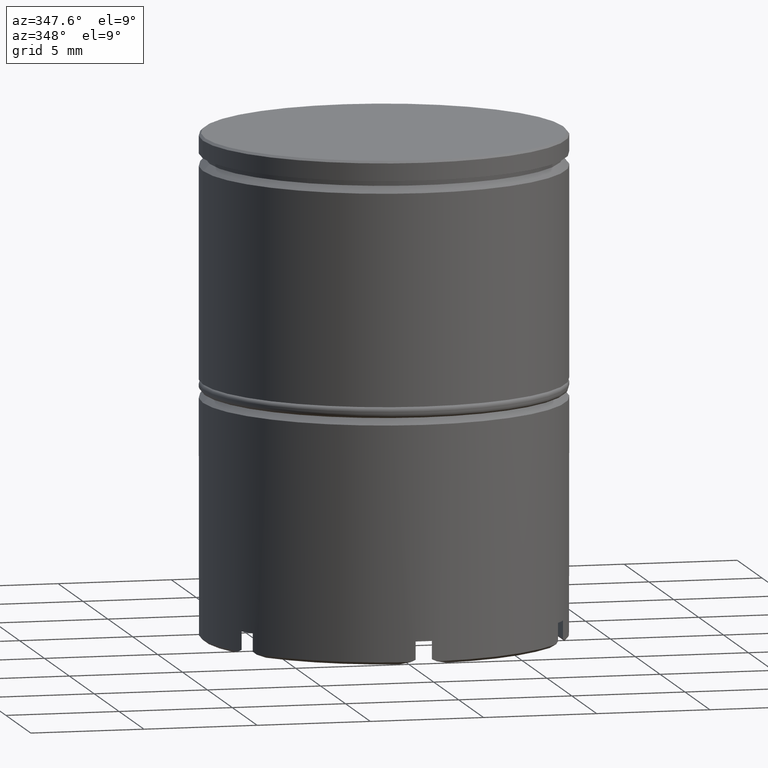
[diagram: clean part render]
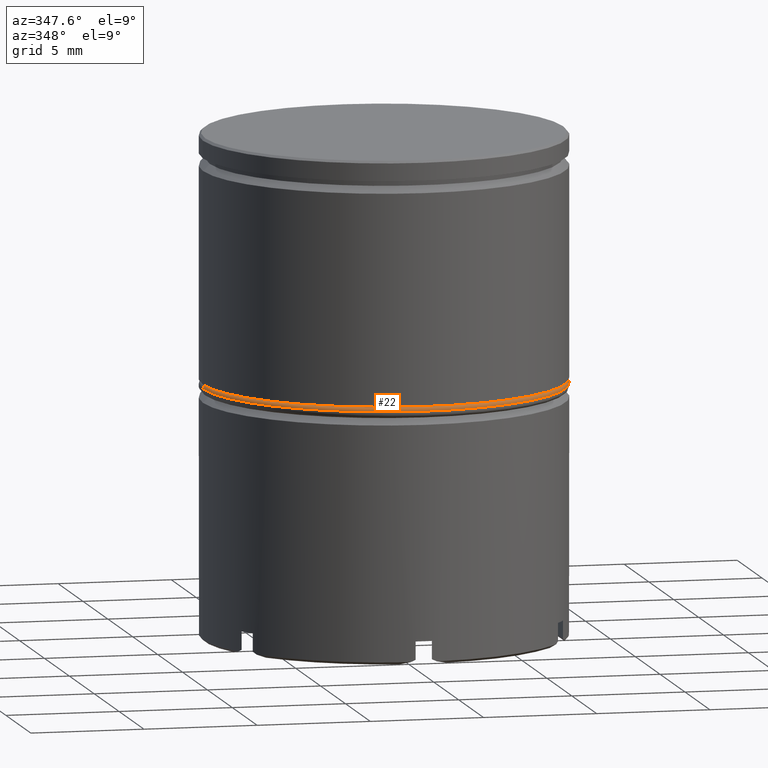
[diagram: same view with one face highlighted and labeled with its STEP entity id]
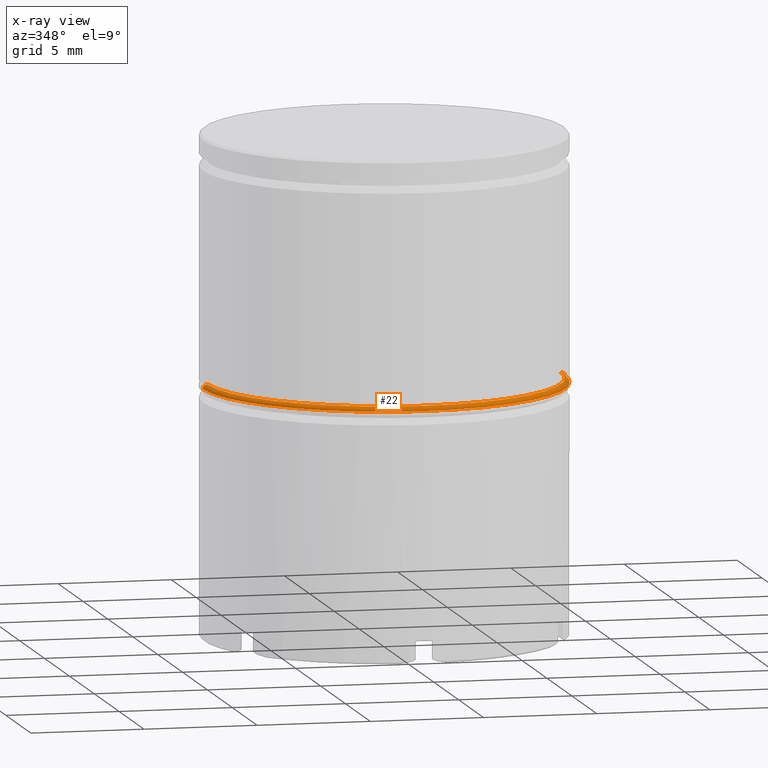
[diagram: x-ray of the same camera — body ghosted, the highlighted face saturated]
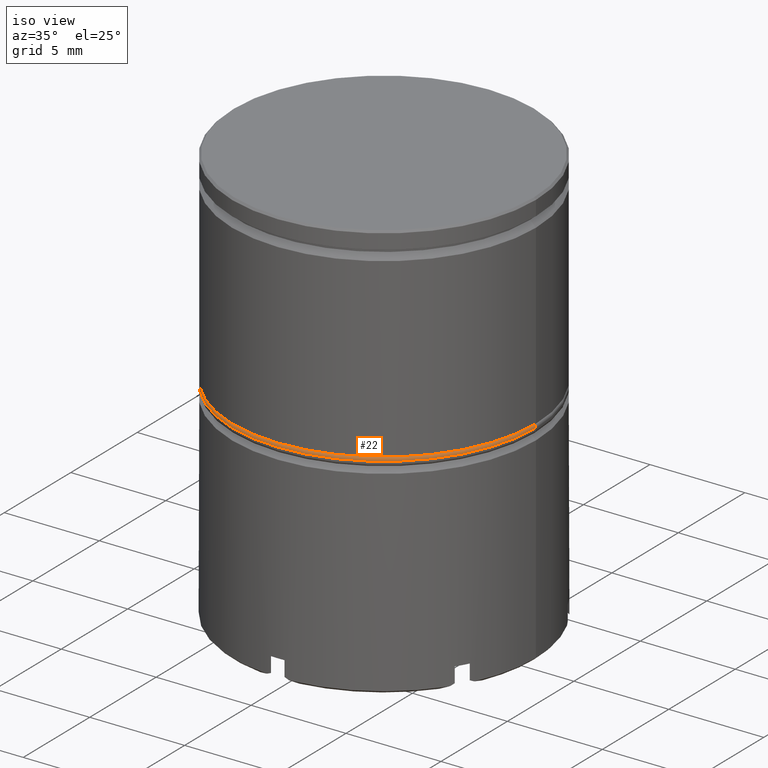
[diagram: same view with one face highlighted and labeled with its STEP entity id]
A machine part, auxiliary view. The second image highlights one B-rep face of the part: STEP entity #22.
The next image is the same camera in x-ray: the body ghosted, the highlighted face saturated — about 0% of this face is hidden behind the body in this view.
A second angle (iso view) of the same face is appended — the face is thin or edge-on in the first view.
In plain terms, the highlighted toroidal blend (fillet) surface has major radius 7.8 mm and minor (blend) radius 0.2 mm.
Its self-contained STEP definition (entity closure, byte-faithful):
#22 = ADVANCED_FACE ( 'NONE', ( #235 ), #1215, .T. ) ;
#50 = AXIS2_PLACEMENT_3D ( 'NONE', #439, #947, #684 ) ;
#61 = CARTESIAN_POINT ( 'NONE',  ( 8.000000000000000000, 0.000000000000000000, -10.95000000000000107 ) ) ;
#128 = AXIS2_PLACEMENT_3D ( 'NONE', #838, #762, #1465 ) ;
#135 = CIRCLE ( 'NONE', #720, 0.1999999999999996503 ) ;
#165 = CARTESIAN_POINT ( 'NONE',  ( 7.800000000000000711, 9.674709713264090115E-16, -10.75000000000000000 ) ) ;
#223 = EDGE_CURVE ( 'NONE', #904, #963, #1289, .T. ) ;
#235 = FACE_OUTER_BOUND ( 'NONE', #475, .T. ) ;
#335 = CARTESIAN_POINT ( 'NONE',  ( -7.800000000000000711, 0.000000000000000000, -10.75000000000000000 ) ) ;
#411 = CARTESIAN_POINT ( 'NONE',  ( -7.800000000000000711, 0.000000000000000000, -10.95000000000000107 ) ) ;
#439 = CARTESIAN_POINT ( 'NONE',  ( 0.000000000000000000, 0.000000000000000000, -10.95000000000000107 ) ) ;
#475 = EDGE_LOOP ( 'NONE', ( #1409, #1436, #675, #1350 ) ) ;
#479 = VERTEX_POINT ( 'NONE', #61 ) ;
#488 = CARTESIAN_POINT ( 'NONE',  ( -8.000000000000000000, 9.797174393178823685E-16, -10.95000000000000107 ) ) ;
#496 = CARTESIAN_POINT ( 'NONE',  ( 7.800000000000000711, 9.552245033349356544E-16, -10.95000000000000107 ) ) ;
#514 = CARTESIAN_POINT ( 'NONE',  ( 0.000000000000000000, 0.000000000000000000, -10.95000000000000107 ) ) ;
#521 = AXIS2_PLACEMENT_3D ( 'NONE', #411, #823, #1051 ) ;
#576 = EDGE_CURVE ( 'NONE', #479, #963, #792, .T. ) ;
#649 = EDGE_CURVE ( 'NONE', #904, #707, #1551, .T. ) ;
#675 = ORIENTED_EDGE ( 'NONE', *, *, #223, .T. ) ;
#684 = DIRECTION ( 'NONE',  ( -1.000000000000000000, 0.000000000000000000, 0.000000000000000000 ) ) ;
#707 = VERTEX_POINT ( 'NONE', #165 ) ;
#720 = AXIS2_PLACEMENT_3D ( 'NONE', #496, #1595, #1352 ) ;
#762 = DIRECTION ( 'NONE',  ( -0.000000000000000000, -0.000000000000000000, 1.000000000000000000 ) ) ;
#792 = CIRCLE ( 'NONE', #50, 8.000000000000000000 ) ;
#823 = DIRECTION ( 'NONE',  ( -0.000000000000000000, -1.000000000000000000, -0.000000000000000000 ) ) ;
#838 = CARTESIAN_POINT ( 'NONE',  ( 0.000000000000000000, 0.000000000000000000, -10.75000000000000000 ) ) ;
#904 = VERTEX_POINT ( 'NONE', #335 ) ;
#947 = DIRECTION ( 'NONE',  ( 0.000000000000000000, 0.000000000000000000, -1.000000000000000000 ) ) ;
#963 = VERTEX_POINT ( 'NONE', #488 ) ;
#1051 = DIRECTION ( 'NONE',  ( 0.000000000000000000, 0.000000000000000000, -1.000000000000000000 ) ) ;
#1211 = EDGE_CURVE ( 'NONE', #707, #479, #135, .T. ) ;
#1215 = TOROIDAL_SURFACE ( 'NONE', #1549, 7.800000000000000711, 0.2000000000000000111 ) ;
#1281 = DIRECTION ( 'NONE',  ( -1.000000000000000000, 0.000000000000000000, 0.000000000000000000 ) ) ;
#1289 = CIRCLE ( 'NONE', #521, 0.2000000000000005107 ) ;
#1350 = ORIENTED_EDGE ( 'NONE', *, *, #576, .F. ) ;
#1352 = DIRECTION ( 'NONE',  ( -1.000000000000000000, -1.224646799147358384E-16, 0.000000000000000000 ) ) ;
#1409 = ORIENTED_EDGE ( 'NONE', *, *, #1211, .F. ) ;
#1436 = ORIENTED_EDGE ( 'NONE', *, *, #649, .F. ) ;
#1465 = DIRECTION ( 'NONE',  ( -1.000000000000000000, 0.000000000000000000, 0.000000000000000000 ) ) ;
#1549 = AXIS2_PLACEMENT_3D ( 'NONE', #514, #1619, #1281 ) ;
#1551 = CIRCLE ( 'NONE', #128, 7.800000000000000711 ) ;
#1595 = DIRECTION ( 'NONE',  ( -1.224646799147353207E-16, 1.000000000000000000, 0.000000000000000000 ) ) ;
#1619 = DIRECTION ( 'NONE',  ( 0.000000000000000000, 0.000000000000000000, -1.000000000000000000 ) ) ;